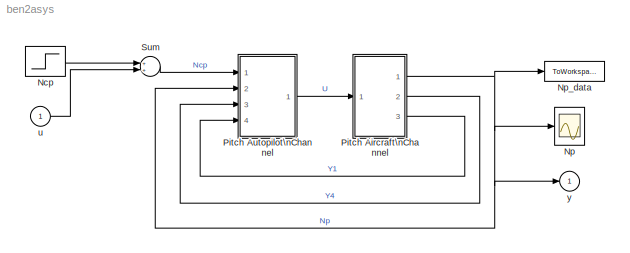
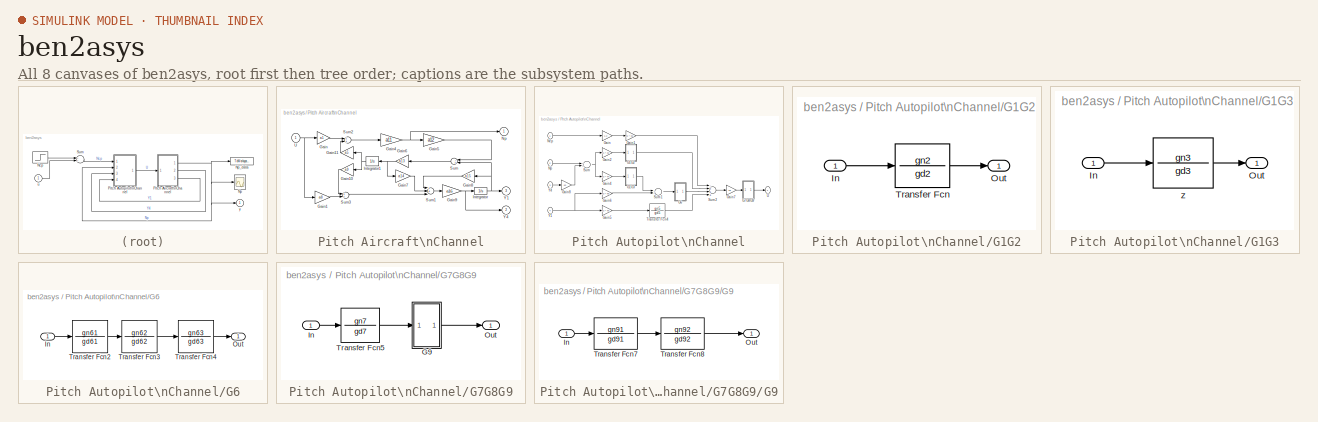
[diagram: thumbnail index - all 8 canvases of the model, root first then tree order]
MODEL ben2asys
KIND model
CONFIG PreLoadFcn = ben2adat
BLOCK [Step] Ncp
  SampleTime = 0
  Time = 0
BLOCK [Scope] Np
  DataFormat = Array
  NumInputPorts = 1
  Ports = [1]
  TickLabels = on
  TimeRange = 5
  YMax = 1.4
  YMin = -0.2
BLOCK [ToWorkspace] Np_data
  SampleTime = -1
  SaveFormat = Array
  VariableName = Np_data
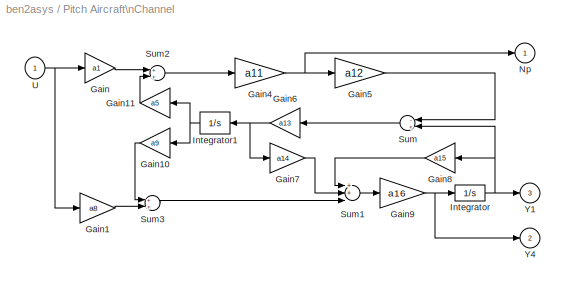
BLOCK [SubSystem] Pitch Aircraft\nChannel
  MinAlgLoopOccurrences = off
  Ports = [1, 3]
  PropExecContextAcrossSSBoundary = on
  RTWSystemCode = Auto
  TreatAsAtomicUnit = off
BLOCK [Gain] Pitch Aircraft\nChannel/Gain
  Gain = a1
BLOCK [Gain] Pitch Aircraft\nChannel/Gain1
  Gain = a8
BLOCK [Gain] Pitch Aircraft\nChannel/Gain10
  Gain = a9
BLOCK [Gain] Pitch Aircraft\nChannel/Gain11
  Gain = a5
BLOCK [Gain] Pitch Aircraft\nChannel/Gain4
  Gain = a11
BLOCK [Gain] Pitch Aircraft\nChannel/Gain5
  Gain = a12
BLOCK [Gain] Pitch Aircraft\nChannel/Gain6
  Gain = a13
BLOCK [Gain] Pitch Aircraft\nChannel/Gain7
  Gain = a14
BLOCK [Gain] Pitch Aircraft\nChannel/Gain8
  Gain = a15
BLOCK [Gain] Pitch Aircraft\nChannel/Gain9
  Gain = a16
BLOCK [Integrator] Pitch Aircraft\nChannel/Integrator
  Ports = [1, 1]
BLOCK [Integrator] Pitch Aircraft\nChannel/Integrator1
  Ports = [1, 1]
BLOCK [Outport] Pitch Aircraft\nChannel/Np
  IconDisplay = Port number
  InitialOutput = 0
BLOCK [Sum] Pitch Aircraft\nChannel/Sum
  Inputs = -+
  Ports = [2, 1]
BLOCK [Sum] Pitch Aircraft\nChannel/Sum1
  Inputs = 3
  Ports = [3, 1]
BLOCK [Sum] Pitch Aircraft\nChannel/Sum2
  Inputs = 2
  Ports = [2, 1]
BLOCK [Sum] Pitch Aircraft\nChannel/Sum3
  Inputs = 2
  Ports = [2, 1]
BLOCK [Inport] Pitch Aircraft\nChannel/U
  IconDisplay = Port number
  LatchInput = off
  Port = 1
BLOCK [Outport] Pitch Aircraft\nChannel/Y1
  IconDisplay = Port number
  InitialOutput = 0
  Port = 3
BLOCK [Outport] Pitch Aircraft\nChannel/Y4
  IconDisplay = Port number
  InitialOutput = 0
  Port = 2
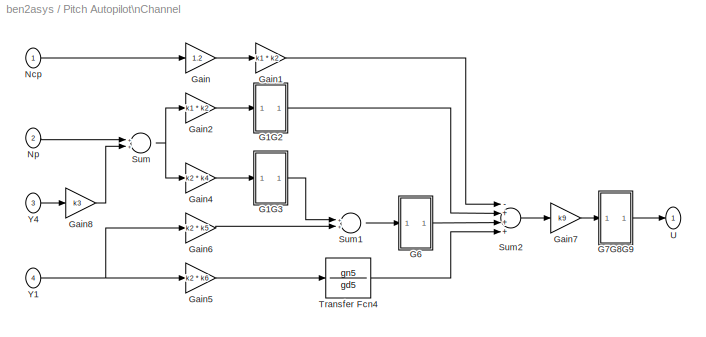
BLOCK [SubSystem] Pitch Autopilot\nChannel
  MinAlgLoopOccurrences = off
  Ports = [4, 1]
  PropExecContextAcrossSSBoundary = on
  RTWSystemCode = Auto
  TreatAsAtomicUnit = off
BLOCK [SubSystem] Pitch Autopilot\nChannel/G1G2
  MinAlgLoopOccurrences = off
  Ports = [1, 1]
  PropExecContextAcrossSSBoundary = on
  RTWSystemCode = Auto
  TreatAsAtomicUnit = off
BLOCK [Inport] Pitch Autopilot\nChannel/G1G2/In
  IconDisplay = Port number
  LatchInput = off
  Port = 1
BLOCK [Outport] Pitch Autopilot\nChannel/G1G2/Out
  IconDisplay = Port number
  InitialOutput = 0
BLOCK [TransferFcn] Pitch Autopilot\nChannel/G1G2/Transfer Fcn
  Denominator = gd2
  Numerator = gn2
BLOCK [SubSystem] Pitch Autopilot\nChannel/G1G3
  MinAlgLoopOccurrences = off
  Ports = [1, 1]
  PropExecContextAcrossSSBoundary = on
  RTWSystemCode = Auto
  TreatAsAtomicUnit = off
BLOCK [Inport] Pitch Autopilot\nChannel/G1G3/In
  IconDisplay = Port number
  LatchInput = off
  Port = 1
BLOCK [Outport] Pitch Autopilot\nChannel/G1G3/Out
  IconDisplay = Port number
  InitialOutput = 0
BLOCK [TransferFcn] Pitch Autopilot\nChannel/G1G3/z
  Denominator = gd3
  Numerator = gn3
BLOCK [SubSystem] Pitch Autopilot\nChannel/G6
  MinAlgLoopOccurrences = off
  Ports = [1, 1]
  PropExecContextAcrossSSBoundary = on
  RTWSystemCode = Auto
  TreatAsAtomicUnit = off
BLOCK [Inport] Pitch Autopilot\nChannel/G6/In
  IconDisplay = Port number
  LatchInput = off
  Port = 1
BLOCK [Outport] Pitch Autopilot\nChannel/G6/Out
  IconDisplay = Port number
  InitialOutput = 0
BLOCK [TransferFcn] Pitch Autopilot\nChannel/G6/Transfer Fcn2
  Denominator = gd61
  Numerator = gn61
BLOCK [TransferFcn] Pitch Autopilot\nChannel/G6/Transfer Fcn3
  Denominator = gd62
  Numerator = gn62
BLOCK [TransferFcn] Pitch Autopilot\nChannel/G6/Transfer Fcn4
  Denominator = gd63
  Numerator = gn63
BLOCK [SubSystem] Pitch Autopilot\nChannel/G7G8G9
  MinAlgLoopOccurrences = off
  Ports = [1, 1]
  PropExecContextAcrossSSBoundary = on
  RTWSystemCode = Auto
  TreatAsAtomicUnit = off
BLOCK [SubSystem] Pitch Autopilot\nChannel/G7G8G9/G9
  MinAlgLoopOccurrences = off
  Ports = [1, 1]
  PropExecContextAcrossSSBoundary = on
  RTWSystemCode = Auto
  TreatAsAtomicUnit = off
BLOCK [Inport] Pitch Autopilot\nChannel/G7G8G9/G9/In
  IconDisplay = Port number
  LatchInput = off
  Port = 1
BLOCK [Outport] Pitch Autopilot\nChannel/G7G8G9/G9/Out
  IconDisplay = Port number
  InitialOutput = 0
BLOCK [TransferFcn] Pitch Autopilot\nChannel/G7G8G9/G9/Transfer Fcn7
  Denominator = gd91
  Numerator = gn91
BLOCK [TransferFcn] Pitch Autopilot\nChannel/G7G8G9/G9/Transfer Fcn8
  Denominator = gd92
  Numerator = gn92
BLOCK [Inport] Pitch Autopilot\nChannel/G7G8G9/In
  IconDisplay = Port number
  LatchInput = off
  Port = 1
BLOCK [Outport] Pitch Autopilot\nChannel/G7G8G9/Out
  IconDisplay = Port number
  InitialOutput = 0
BLOCK [TransferFcn] Pitch Autopilot\nChannel/G7G8G9/Transfer Fcn5
  Denominator = gd7
  Numerator = gn7
BLOCK [Gain] Pitch Autopilot\nChannel/Gain
  Gain = 1.2
BLOCK [Gain] Pitch Autopilot\nChannel/Gain1
  Gain = k1 * k2
BLOCK [Gain] Pitch Autopilot\nChannel/Gain2
  Gain = k1 * k2
BLOCK [Gain] Pitch Autopilot\nChannel/Gain4
  Gain = k2 * k4
BLOCK [Gain] Pitch Autopilot\nChannel/Gain5
  Gain = k2 * k6
BLOCK [Gain] Pitch Autopilot\nChannel/Gain6
  Gain = k2 * k5
BLOCK [Gain] Pitch Autopilot\nChannel/Gain7
  Gain = k9
BLOCK [Gain] Pitch Autopilot\nChannel/Gain8
  Gain = k3
BLOCK [Inport] Pitch Autopilot\nChannel/Ncp
  IconDisplay = Port number
  LatchInput = off
  Port = 1
BLOCK [Inport] Pitch Autopilot\nChannel/Np
  IconDisplay = Port number
  LatchInput = off
  Port = 2
BLOCK [Sum] Pitch Autopilot\nChannel/Sum
  Inputs = 2
  Ports = [2, 1]
BLOCK [Sum] Pitch Autopilot\nChannel/Sum1
  Inputs = 2
  Ports = [2, 1]
BLOCK [Sum] Pitch Autopilot\nChannel/Sum2
  Inputs = -+++
  Ports = [4, 1]
BLOCK [TransferFcn] Pitch Autopilot\nChannel/Transfer Fcn4
  Denominator = gd5
  Numerator = gn5
BLOCK [Outport] Pitch Autopilot\nChannel/U
  IconDisplay = Port number
  InitialOutput = 0
BLOCK [Inport] Pitch Autopilot\nChannel/Y1
  IconDisplay = Port number
  LatchInput = off
  Port = 4
BLOCK [Inport] Pitch Autopilot\nChannel/Y4
  IconDisplay = Port number
  LatchInput = off
  Port = 3
BLOCK [Sum] Sum
  Ports = [2, 1]
BLOCK [Inport] u
  IconDisplay = Port number
  LatchInput = off
  Port = 1
BLOCK [Outport] y
  IconDisplay = Port number
  InitialOutput = 0
LINE Ncp:1 -> Sum:1
LINE Pitch Aircraft\nChannel/Gain10:1 -> Pitch Aircraft\nChannel/Sum3:1
LINE Pitch Aircraft\nChannel/Gain11:1 -> Pitch Aircraft\nChannel/Sum2:2
LINE Pitch Aircraft\nChannel/Gain1:1 -> Pitch Aircraft\nChannel/Sum3:2
NET Pitch Aircraft\nChannel/Gain4:1 -> Pitch Aircraft\nChannel/Gain5:1, Pitch Aircraft\nChannel/Np:1
LINE Pitch Aircraft\nChannel/Gain5:1 -> Pitch Aircraft\nChannel/Sum:1
NET Pitch Aircraft\nChannel/Gain6:1 -> Pitch Aircraft\nChannel/Gain7:1, Pitch Aircraft\nChannel/Integrator1:1
LINE Pitch Aircraft\nChannel/Gain7:1 -> Pitch Aircraft\nChannel/Sum1:2
LINE Pitch Aircraft\nChannel/Gain8:1 -> Pitch Aircraft\nChannel/Sum1:1
NET Pitch Aircraft\nChannel/Gain9:1 -> Pitch Aircraft\nChannel/Integrator:1, Pitch Aircraft\nChannel/Y4:1
LINE Pitch Aircraft\nChannel/Gain:1 -> Pitch Aircraft\nChannel/Sum2:1
NET Pitch Aircraft\nChannel/Integrator1:1 -> Pitch Aircraft\nChannel/Gain10:1, Pitch Aircraft\nChannel/Gain11:1
NET Pitch Aircraft\nChannel/Integrator:1 -> Pitch Aircraft\nChannel/Gain8:1, Pitch Aircraft\nChannel/Sum:2, Pitch Aircraft\nChannel/Y1:1
LINE Pitch Aircraft\nChannel/Sum1:1 -> Pitch Aircraft\nChannel/Gain9:1
LINE Pitch Aircraft\nChannel/Sum2:1 -> Pitch Aircraft\nChannel/Gain4:1
LINE Pitch Aircraft\nChannel/Sum3:1 -> Pitch Aircraft\nChannel/Sum1:3
LINE Pitch Aircraft\nChannel/Sum:1 -> Pitch Aircraft\nChannel/Gain6:1
NET Pitch Aircraft\nChannel/U:1 -> Pitch Aircraft\nChannel/Gain1:1, Pitch Aircraft\nChannel/Gain:1
NET Pitch Aircraft\nChannel:1 -> Np:1, Np_data:1, Pitch Autopilot\nChannel:2, y:1
LINE Pitch Aircraft\nChannel:2 -> Pitch Autopilot\nChannel:3
LINE Pitch Aircraft\nChannel:3 -> Pitch Autopilot\nChannel:4
LINE Pitch Autopilot\nChannel/G1G2/In:1 -> Pitch Autopilot\nChannel/G1G2/Transfer Fcn:1
LINE Pitch Autopilot\nChannel/G1G2/Transfer Fcn:1 -> Pitch Autopilot\nChannel/G1G2/Out:1
LINE Pitch Autopilot\nChannel/G1G2:1 -> Pitch Autopilot\nChannel/Sum2:2
LINE Pitch Autopilot\nChannel/G1G3/In:1 -> Pitch Autopilot\nChannel/G1G3/z:1
LINE Pitch Autopilot\nChannel/G1G3/z:1 -> Pitch Autopilot\nChannel/G1G3/Out:1
LINE Pitch Autopilot\nChannel/G1G3:1 -> Pitch Autopilot\nChannel/Sum1:1
LINE Pitch Autopilot\nChannel/G6/In:1 -> Pitch Autopilot\nChannel/G6/Transfer Fcn2:1
LINE Pitch Autopilot\nChannel/G6/Transfer Fcn2:1 -> Pitch Autopilot\nChannel/G6/Transfer Fcn3:1
LINE Pitch Autopilot\nChannel/G6/Transfer Fcn3:1 -> Pitch Autopilot\nChannel/G6/Transfer Fcn4:1
LINE Pitch Autopilot\nChannel/G6/Transfer Fcn4:1 -> Pitch Autopilot\nChannel/G6/Out:1
LINE Pitch Autopilot\nChannel/G6:1 -> Pitch Autopilot\nChannel/Sum2:3
LINE Pitch Autopilot\nChannel/G7G8G9/G9/In:1 -> Pitch Autopilot\nChannel/G7G8G9/G9/Transfer Fcn7:1
LINE Pitch Autopilot\nChannel/G7G8G9/G9/Transfer Fcn7:1 -> Pitch Autopilot\nChannel/G7G8G9/G9/Transfer Fcn8:1
LINE Pitch Autopilot\nChannel/G7G8G9/G9/Transfer Fcn8:1 -> Pitch Autopilot\nChannel/G7G8G9/G9/Out:1
LINE Pitch Autopilot\nChannel/G7G8G9/G9:1 -> Pitch Autopilot\nChannel/G7G8G9/Out:1
LINE Pitch Autopilot\nChannel/G7G8G9/In:1 -> Pitch Autopilot\nChannel/G7G8G9/Transfer Fcn5:1
LINE Pitch Autopilot\nChannel/G7G8G9/Transfer Fcn5:1 -> Pitch Autopilot\nChannel/G7G8G9/G9:1
LINE Pitch Autopilot\nChannel/G7G8G9:1 -> Pitch Autopilot\nChannel/U:1
LINE Pitch Autopilot\nChannel/Gain1:1 -> Pitch Autopilot\nChannel/Sum2:1
LINE Pitch Autopilot\nChannel/Gain2:1 -> Pitch Autopilot\nChannel/G1G2:1
LINE Pitch Autopilot\nChannel/Gain4:1 -> Pitch Autopilot\nChannel/G1G3:1
LINE Pitch Autopilot\nChannel/Gain5:1 -> Pitch Autopilot\nChannel/Transfer Fcn4:1
LINE Pitch Autopilot\nChannel/Gain6:1 -> Pitch Autopilot\nChannel/Sum1:2
LINE Pitch Autopilot\nChannel/Gain7:1 -> Pitch Autopilot\nChannel/G7G8G9:1
LINE Pitch Autopilot\nChannel/Gain8:1 -> Pitch Autopilot\nChannel/Sum:2
LINE Pitch Autopilot\nChannel/Gain:1 -> Pitch Autopilot\nChannel/Gain1:1
LINE Pitch Autopilot\nChannel/Ncp:1 -> Pitch Autopilot\nChannel/Gain:1
LINE Pitch Autopilot\nChannel/Np:1 -> Pitch Autopilot\nChannel/Sum:1
LINE Pitch Autopilot\nChannel/Sum1:1 -> Pitch Autopilot\nChannel/G6:1
LINE Pitch Autopilot\nChannel/Sum2:1 -> Pitch Autopilot\nChannel/Gain7:1
NET Pitch Autopilot\nChannel/Sum:1 -> Pitch Autopilot\nChannel/Gain2:1, Pitch Autopilot\nChannel/Gain4:1
LINE Pitch Autopilot\nChannel/Transfer Fcn4:1 -> Pitch Autopilot\nChannel/Sum2:4
NET Pitch Autopilot\nChannel/Y1:1 -> Pitch Autopilot\nChannel/Gain5:1, Pitch Autopilot\nChannel/Gain6:1
LINE Pitch Autopilot\nChannel/Y4:1 -> Pitch Autopilot\nChannel/Gain8:1
LINE Pitch Autopilot\nChannel:1 -> Pitch Aircraft\nChannel:1
LINE Sum:1 -> Pitch Autopilot\nChannel:1
LINE u:1 -> Sum:2
note: NET lines group one-source signal fan-out (src -> all destinations, sorted); 1:1 wires keep LINE
